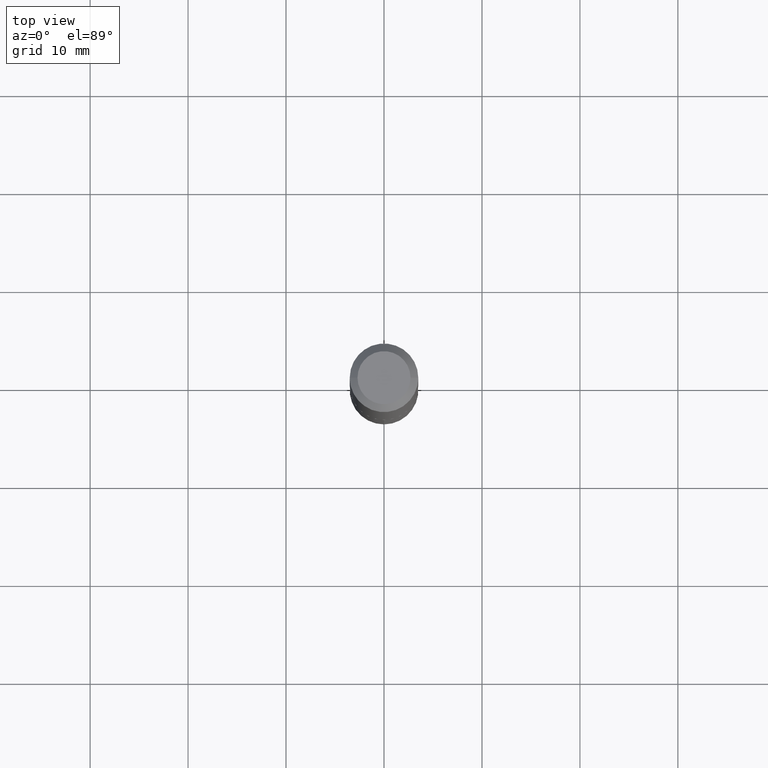
[diagram: clean part render]
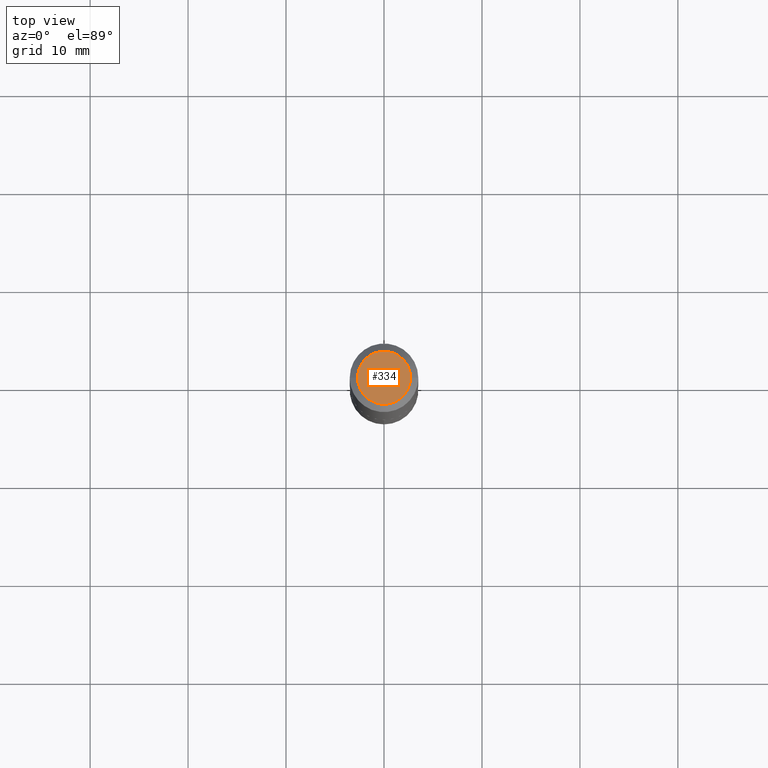
[diagram: same view with one face highlighted and labeled with its STEP entity id]
A machine part, top view. The second image highlights one B-rep face of the part: STEP entity #334.
In plain terms, the highlighted planar face has unit normal (0, -0, -1).
Its self-contained STEP definition (entity closure, byte-faithful):
#8 = ORIENTED_EDGE ( 'NONE', *, *, #257, .T. ) ;
#25 = CIRCLE ( 'NONE', #390, 0.1065500000000000197 ) ;
#38 = CARTESIAN_POINT ( 'NONE',  ( 0.1065500000000000197, -8.927357387971616206E-16, 4.837354856689280991E-19 ) ) ;
#51 = ORIENTED_EDGE ( 'NONE', *, *, #94, .T. ) ;
#69 = CARTESIAN_POINT ( 'NONE',  ( -5.914800203170931988E-48, 8.444767105646539499E-34, 2.418677428316027436E-19 ) ) ;
#94 = EDGE_CURVE ( 'NONE', #385, #277, #187, .T. ) ;
#111 = DIRECTION ( 'NONE',  ( -2.445468806185136597E-29, 3.491481338843145583E-15, 1.000000000000000000 ) ) ;
#112 = CARTESIAN_POINT ( 'NONE',  ( -1.182960040634186398E-47, 1.688953421129307900E-33, 4.837354856632054872E-19 ) ) ;
#133 = CARTESIAN_POINT ( 'NONE',  ( -1.182960040634186398E-47, 1.688953421129307900E-33, 4.837354856632054872E-19 ) ) ;
#182 = EDGE_LOOP ( 'NONE', ( #8, #51 ) ) ;
#183 = AXIS2_PLACEMENT_3D ( 'NONE', #133, #347, #288 ) ;
#187 = CIRCLE ( 'NONE', #183, 0.1065500000000000197 ) ;
#189 = DIRECTION ( 'NONE',  ( -1.000000000000000000, 6.982962677686265922E-15, -4.876176775795935793E-29 ) ) ;
#202 = CARTESIAN_POINT ( 'NONE',  ( -0.1065500000000000197, 7.985890692268953051E-16, 4.837354856578115352E-19 ) ) ;
#232 = DIRECTION ( 'NONE',  ( 1.000000000000000000, -6.982962677686266711E-15, 4.876156115951996795E-29 ) ) ;
#257 = EDGE_CURVE ( 'NONE', #277, #385, #25, .T. ) ;
#277 = VERTEX_POINT ( 'NONE', #202 ) ;
#282 = PLANE ( 'NONE',  #336 ) ;
#288 = DIRECTION ( 'NONE',  ( 1.000000000000000000, -6.982962677686266711E-15, 4.876156115951996795E-29 ) ) ;
#334 = ADVANCED_FACE ( 'NONE', ( #377 ), #282, .F. ) ;
#336 = AXIS2_PLACEMENT_3D ( 'NONE', #69, #349, #189 ) ;
#347 = DIRECTION ( 'NONE',  ( -2.445468806185136597E-29, 3.491481338843145583E-15, 1.000000000000000000 ) ) ;
#349 = DIRECTION ( 'NONE',  ( 2.438088387897960049E-29, -3.491481338843145188E-15, -1.000000000000000000 ) ) ;
#377 = FACE_OUTER_BOUND ( 'NONE', #182, .T. ) ;
#385 = VERTEX_POINT ( 'NONE', #38 ) ;
#390 = AXIS2_PLACEMENT_3D ( 'NONE', #112, #111, #232 ) ;